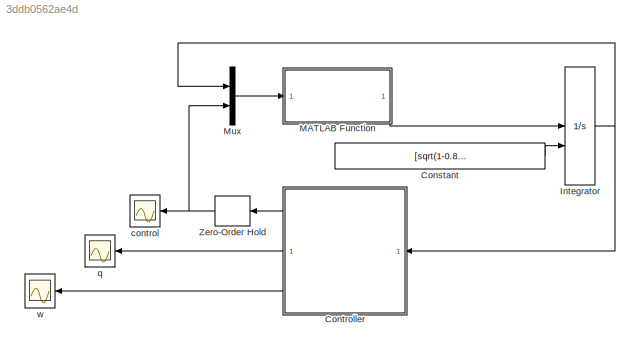
MODEL mdl_3ddb0562ae4d
KIND model
CONFIG AbsTol = 1e-5
CONFIG EnableMultiTasking = on
CONFIG FixedStep = auto
CONFIG MaxStep = auto
CONFIG MinStep = auto
CONFIG RelTol = 1e-5
CONFIG SampleTimeConstraint = Unconstrained
CONFIG SolverName = ode45
CONFIG StartTime = 0.0
CONFIG StopTime = 10
BLOCK [Constant] Constant
  Value = [sqrt(1-0.8^2-0.1^2-0.2^2);0.8;0.1;-0.2;0;0;0]
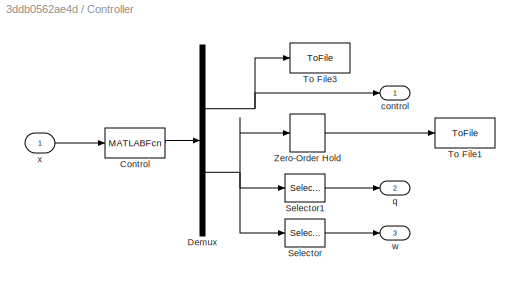
BLOCK [SubSystem] Controller
BLOCK [MATLABFcn] Controller/Control
  MATLABFcn = control(u)
  OutputDimensions = 10
BLOCK [Demux] Controller/Demux
  DisplayOption = none
  Outputs = [3 7]
BLOCK [Selector] Controller/Selector
  IndexOptions = Index vector (dialog)
  Indices = [5 6 7]
  InputPortWidth = 7
  OutputSizes = 1
BLOCK [Selector] Controller/Selector1
  IndexOptions = Index vector (dialog)
  Indices = [1 2 3 4]
  InputPortWidth = 7
  OutputSizes = 1
BLOCK [ToFile] Controller/To File1
  Filename = corps.mat
  SaveFormat = Timeseries
BLOCK [ToFile] Controller/To File3
  Filename = control.mat
  SaveFormat = Timeseries
BLOCK [ZeroOrderHold] Controller/Zero-Order Hold
  SampleTime = 0.01
BLOCK [Outport] Controller/control
BLOCK [Outport] Controller/q
  Port = 2
BLOCK [Outport] Controller/w
  Port = 3
BLOCK [Inport] Controller/x
BLOCK [Integrator] Integrator
  InitialConditionSource = external
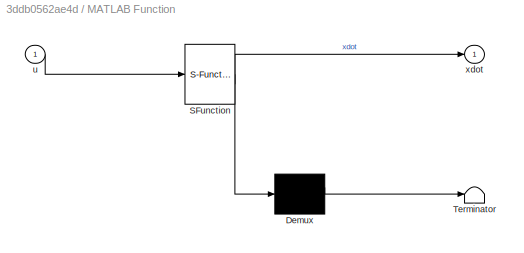
BLOCK [SubSystem] MATLAB Function
  ErrorFcn = Stateflow.Translate.translate
  PermitHierarchicalResolution = ExplicitOnly
  SFBlockType = MATLAB Function
  TreatAsAtomicUnit = on
BLOCK [Demux] MATLAB Function/ Demux 
  Outputs = 1
BLOCK [S-Function] MATLAB Function/ SFunction 
  EnableBusSupport = on
  FunctionName = sf_sfun
  PortCounts = [1 2]
  SFcnIsStateOwnerBlock = off
  SFunctionDeploymentMode = off
  Tag = Stateflow S-Function 2
BLOCK [Terminator] MATLAB Function/ Terminator 
BLOCK [Inport] MATLAB Function/u
BLOCK [Outport] MATLAB Function/xdot
BLOCK [Mux] Mux
  DisplayOption = bar
  Inputs = 2
BLOCK [ZeroOrderHold] Zero-Order Hold
  SampleTime = 0.1
BLOCK [Scope] control
  Floating = off
  NumInputPorts = 1
  ScopeSpecificationString = Simulink.scopes.TimeScopeBlockCfg('CurrentConfiguration', extmgr.ConfigurationSet(extmgr.Configuration('Core','General UI',true),extmgr.Configuration('Core','Source UI',true),extmgr.Configuration('Sources','WiredSimulink',true,'DataLoggingVariableName','ScopeData4','DataLoggingSaveFormat','StructureWithTime','DataLoggingLimitDataPoints',true,'DataLoggingDecimation','1','DataLoggingDecimateData',tr...<+1885ch>
BLOCK [Scope] q
  Floating = off
  NumInputPorts = 1
  ScopeSpecificationString = Simulink.scopes.TimeScopeBlockCfg('CurrentConfiguration', extmgr.ConfigurationSet(extmgr.Configuration('Core','General UI',true),extmgr.Configuration('Core','Source UI',true),extmgr.Configuration('Sources','WiredSimulink',true,'DataLoggingVariableName','ScopeData1','DataLoggingSaveFormat','StructureWithTime','DataLoggingLimitDataPoints',true,'DataLoggingDecimation','1','DataLoggingDecimateData',tr...<+1837ch>
BLOCK [Scope] w
  Floating = off
  NumInputPorts = 1
  ScopeSpecificationString = Simulink.scopes.TimeScopeBlockCfg('CurrentConfiguration', extmgr.ConfigurationSet(extmgr.Configuration('Core','General UI',true),extmgr.Configuration('Core','Source UI',true),extmgr.Configuration('Sources','WiredSimulink',true,'DataLoggingVariableName','ScopeData3','DataLoggingSaveFormat','StructureWithTime','DataLoggingLimitDataPoints',true,'DataLoggingDecimation','1','DataLoggingDecimateData',tr...<+1774ch>
LINE Constant:1 -> Integrator:2
LINE Controller/Control:1 -> Controller/Demux:1
NET Controller/Demux:1 -> Controller/To File3:1, Controller/control:1
NET Controller/Demux:2 -> Controller/Selector1:1, Controller/Selector:1, Controller/Zero-Order Hold:1
LINE Controller/Selector1:1 -> Controller/q:1
LINE Controller/Selector:1 -> Controller/w:1
LINE Controller/Zero-Order Hold:1 -> Controller/To File1:1
LINE Controller/x:1 -> Controller/Control:1
LINE Controller:1 -> Zero-Order Hold:1
LINE Controller:2 -> q:1
LINE Controller:3 -> w:1
NET Integrator:1 -> Controller:1, Mux:1
LINE MATLAB Function:1 -> Integrator:1
LINE Mux:1 -> MATLAB Function:1
NET Zero-Order Hold:1 -> Mux:2, control:1
note: NET lines group one-source signal fan-out (src -> all destinations, sorted); 1:1 wires keep LINE
CHART MATLAB Function states=1 transitions=1
  STATE_LABEL 'eML_blk_kernel()'
  STATE_LABEL "SCRIPT:\nfunction xdot= dynamique(u)\n% Fonction qui définit la dynamique du corps à contrôler\n\n% On définit les paramètres mécaniques du corps\nJ= [1 -1 0; -1 2 1; 0 1 2];\nB= [1 0 0.2;0.1 1 0; -0.1 -0.2 1];\n\n% On redéfinit les états en fonction de u:\nqs= u(1);\nqv= u(2:4);\nw= u(5:7);\ncontrol= u(8:10);\n\n% On définit la dynamique du corps avec un terme de correction\ndqs= -0.5*qv'*w-qs*(norm([qs;qv])^2-...<+117ch>"
CHART  states=0 transitions=0
